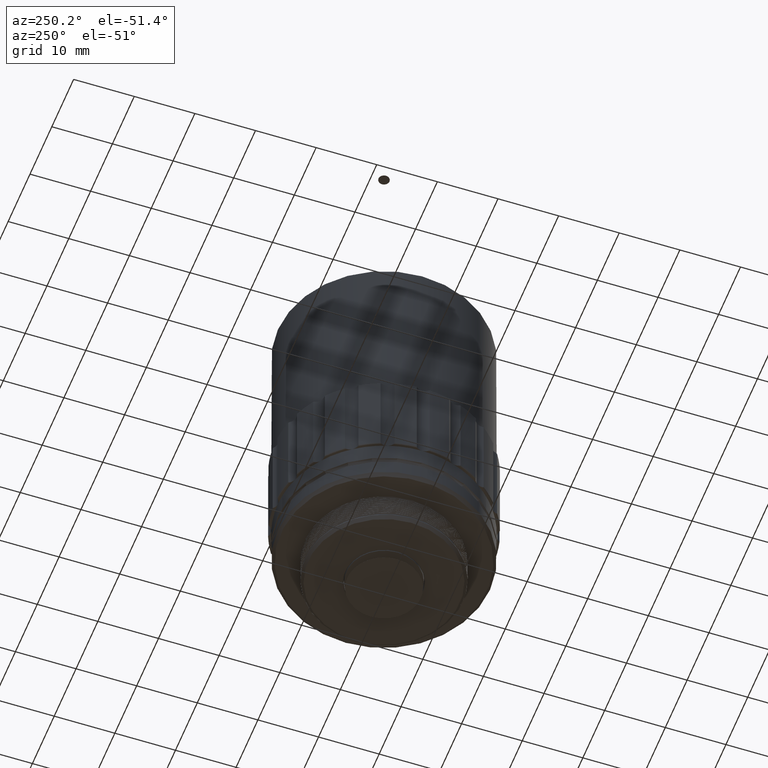
[diagram: clean part render]
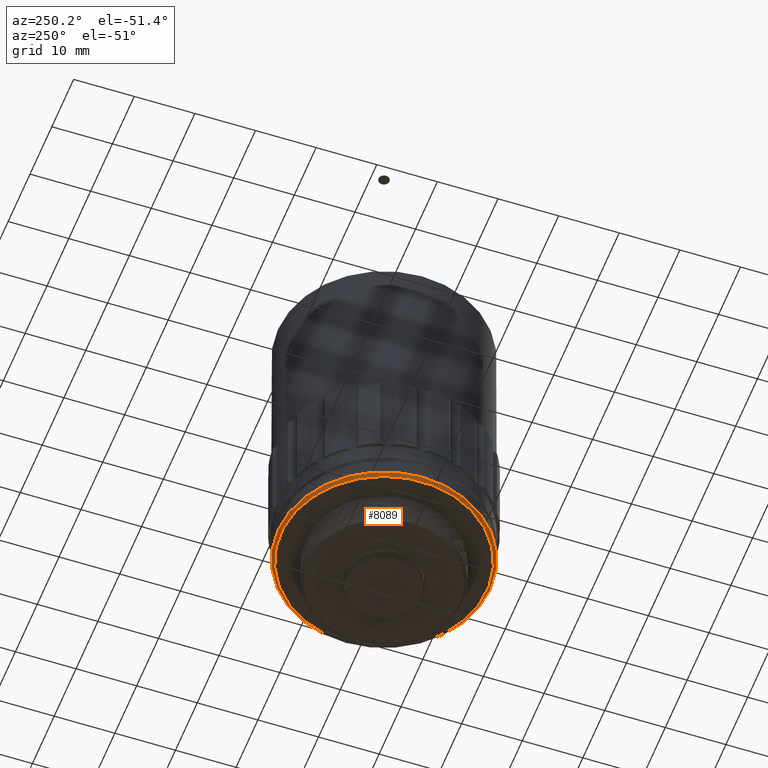
[diagram: same view with one face highlighted and labeled with its STEP entity id]
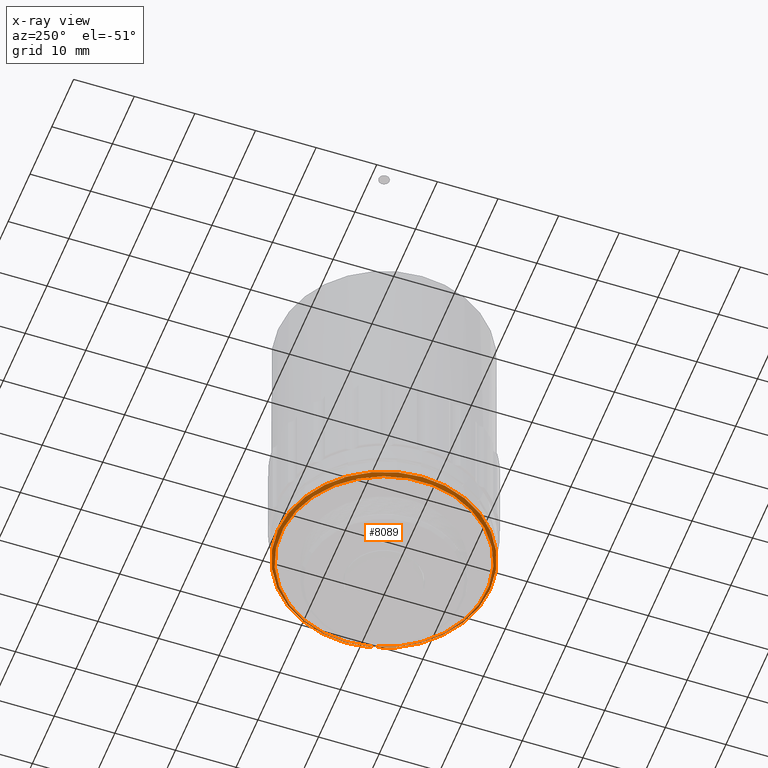
[diagram: x-ray of the same camera — body ghosted, the highlighted face saturated]
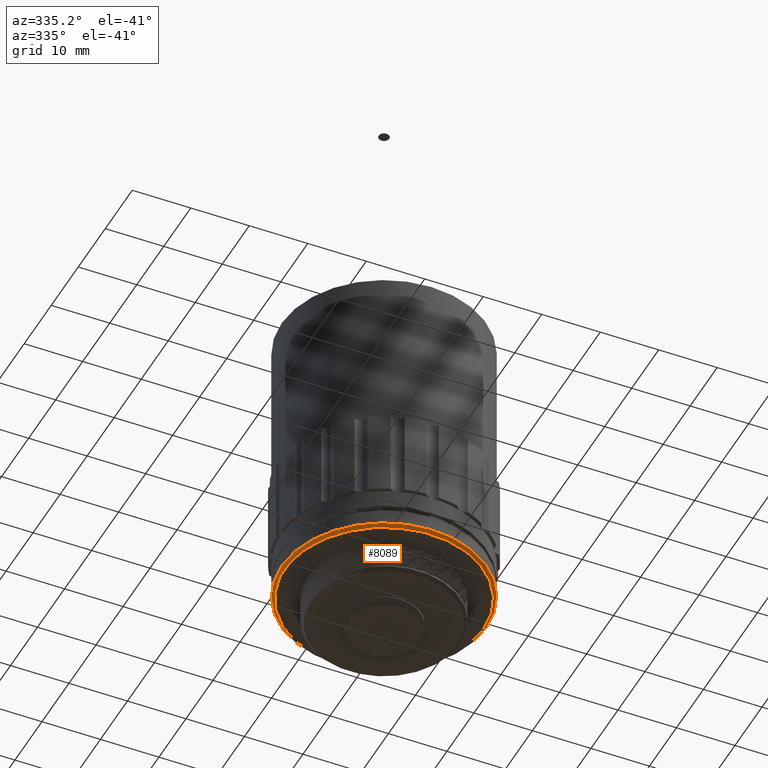
[diagram: same view with one face highlighted and labeled with its STEP entity id]
A machine part, auxiliary view. The second image highlights one B-rep face of the part: STEP entity #8089.
The next image is the same camera in x-ray: the body ghosted, the highlighted face saturated — about 0% of this face is hidden behind the body in this view.
A second angle (auxiliary view) of the same face is appended — the face is thin or edge-on in the first view.
In plain terms, the highlighted conical surface has half-angle 45 deg.
Its self-contained STEP definition (entity closure, byte-faithful):
#627 = CARTESIAN_POINT ( 'NONE',  ( -1.239088197129897575E-17, 0.000000000000000000, 4.499999999998459899 ) ) ;
#886 = EDGE_LOOP ( 'NONE', ( #3844 ) ) ;
#1590 = DIRECTION ( 'NONE',  ( 1.000000000000000000, 0.000000000000000000, 0.000000000000000000 ) ) ;
#1709 = CONICAL_SURFACE ( 'NONE', #6588, 17.50000000000293099, 0.7853981633972973997 ) ;
#1764 = DIRECTION ( 'NONE',  ( 1.000000000000000000, 0.000000000000000000, 0.000000000000000000 ) ) ;
#2112 = FACE_BOUND ( 'NONE', #7119, .T. ) ;
#2396 = CARTESIAN_POINT ( 'NONE',  ( 17.00000000000154188, 0.000000000000000000, 4.499999999998459899 ) ) ;
#2583 = AXIS2_PLACEMENT_3D ( 'NONE', #627, #5246, #1764 ) ;
#2729 = ORIENTED_EDGE ( 'NONE', *, *, #5254, .T. ) ;
#2746 = EDGE_CURVE ( 'NONE', #2878, #2878, #8599, .T. ) ;
#2855 = CARTESIAN_POINT ( 'NONE',  ( -1.074737692180197237E-32, 0.000000000000000000, 4.999999999999999112 ) ) ;
#2878 = VERTEX_POINT ( 'NONE', #8278 ) ;
#3320 = CARTESIAN_POINT ( 'NONE',  ( 0.000000000000000000, 0.000000000000000000, 5.000000000000000000 ) ) ;
#3844 = ORIENTED_EDGE ( 'NONE', *, *, #2746, .F. ) ;
#4543 = VERTEX_POINT ( 'NONE', #2396 ) ;
#5246 = DIRECTION ( 'NONE',  ( 2.478176394252166619E-17, -0.000000000000000000, 1.000000000000000000 ) ) ;
#5254 = EDGE_CURVE ( 'NONE', #4543, #4543, #6348, .T. ) ;
#6348 = CIRCLE ( 'NONE', #2583, 17.00000000000154188 ) ;
#6480 = AXIS2_PLACEMENT_3D ( 'NONE', #3320, #7937, #8016 ) ;
#6588 = AXIS2_PLACEMENT_3D ( 'NONE', #2855, #7591, #1590 ) ;
#6836 = FACE_OUTER_BOUND ( 'NONE', #886, .T. ) ;
#7119 = EDGE_LOOP ( 'NONE', ( #2729 ) ) ;
#7591 = DIRECTION ( 'NONE',  ( 2.478176394252166619E-17, -0.000000000000000000, 1.000000000000000000 ) ) ;
#7937 = DIRECTION ( 'NONE',  ( 0.000000000000000000, 0.000000000000000000, 1.000000000000000000 ) ) ;
#8016 = DIRECTION ( 'NONE',  ( 1.000000000000000000, 0.000000000000000000, 0.000000000000000000 ) ) ;
#8089 = ADVANCED_FACE ( 'NONE', ( #6836, #2112 ), #1709, .T. ) ;
#8278 = CARTESIAN_POINT ( 'NONE',  ( 17.50000000000000000, 0.000000000000000000, 5.000000000000000000 ) ) ;
#8599 = CIRCLE ( 'NONE', #6480, 17.50000000000000000 ) ;